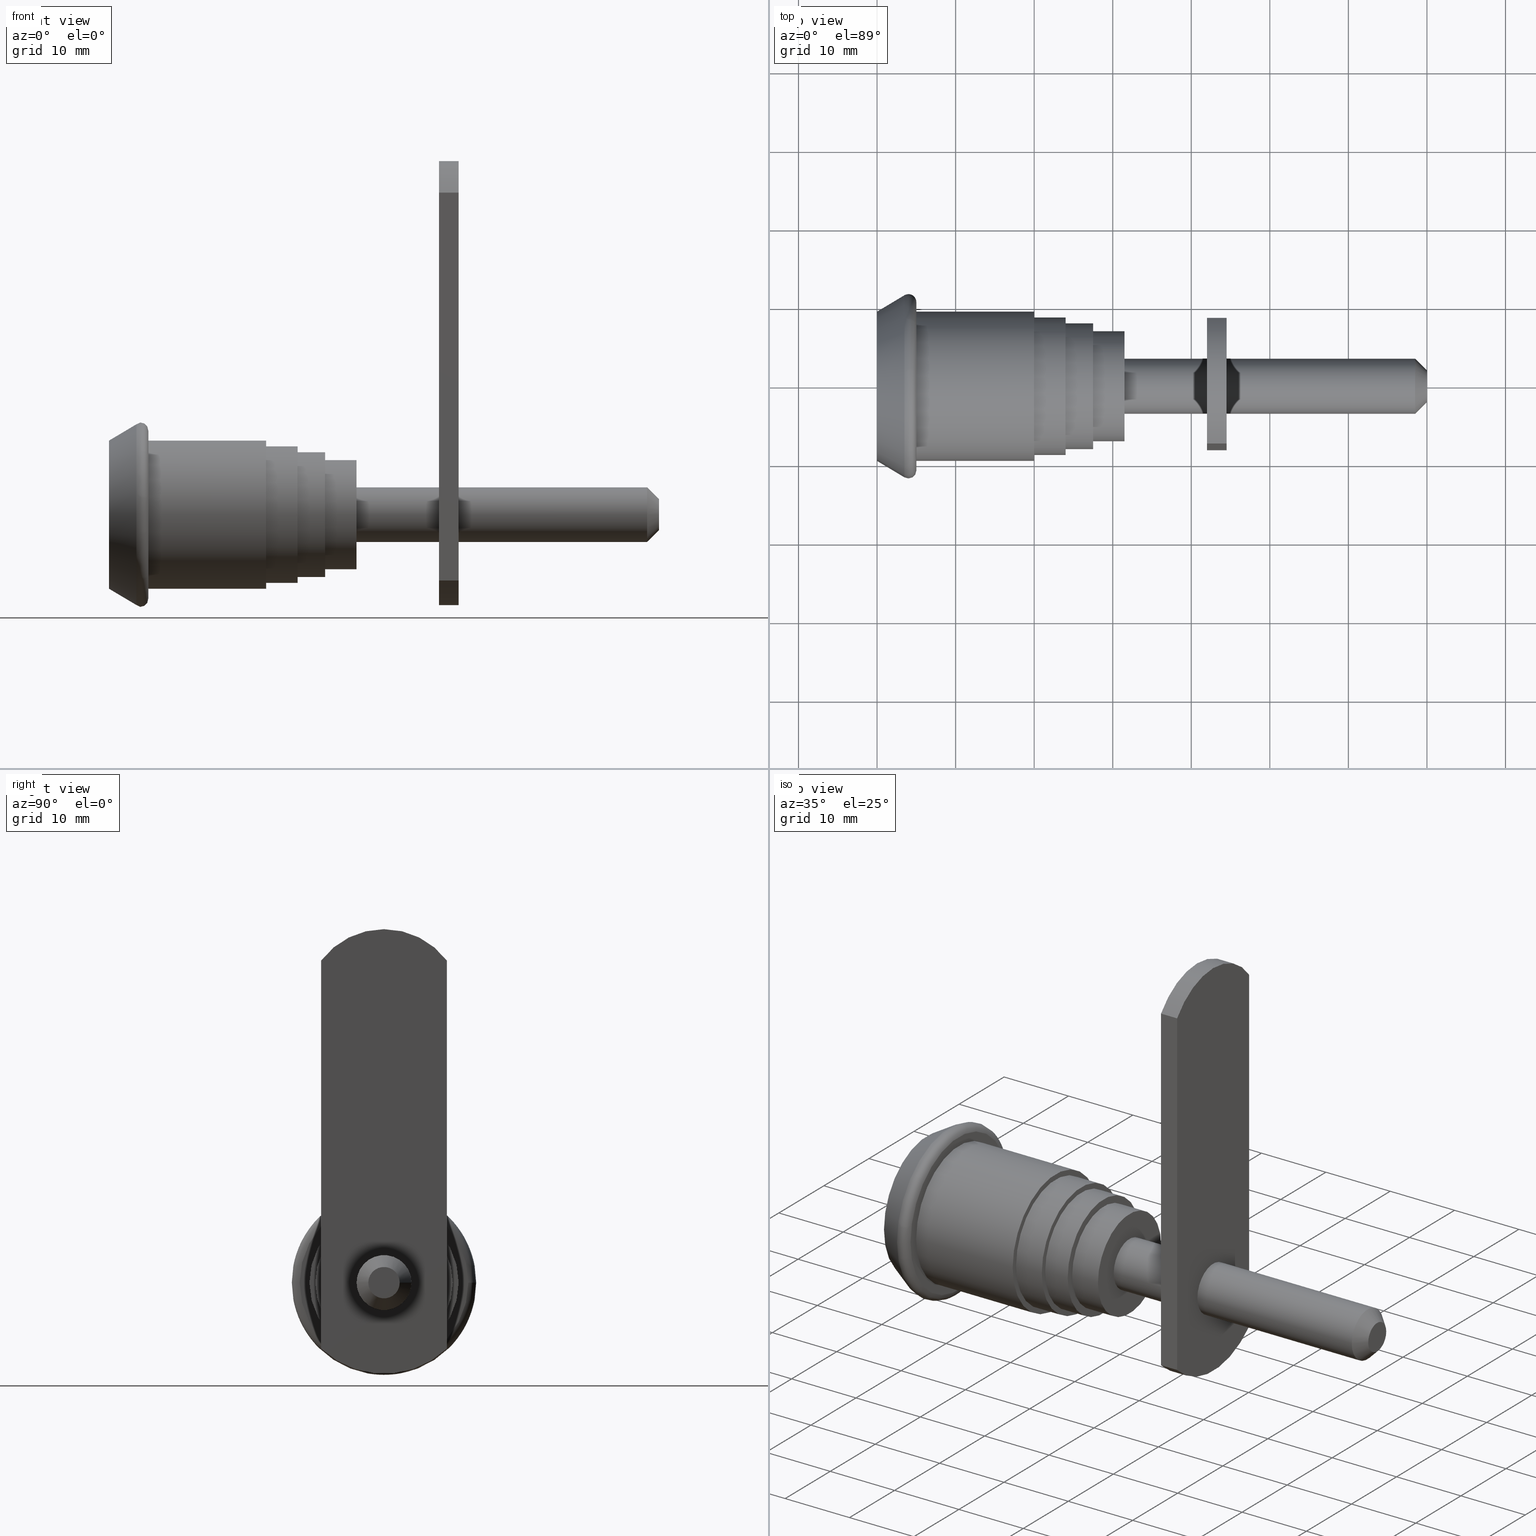
[diagram: canonical four-view strip — front | top / right | iso, engineering-drawing reading convention]
A machine part, canonical four-view strip (front | top / right | iso — engineering-drawing reading convention). The complete STEP part file that produces these views, byte-faithful:
ISO-10303-21;
HEADER;
/****************************************************************
 * Generated by software with PDE/Lib inside                    *
 * PDElib Version v4.4, created Mon 02/23/2004                  *
 * International Technegroup Inc. (www.iti-oh.com)              *
 ****************************************************************/
FILE_DESCRIPTION(('STEP AP203'),'2;1');
FILE_NAME('24.003.00.stp','2011-03-28T17:23:06',(''),(''),'2009.3.110','THINKDESIGN','');
FILE_SCHEMA(('CONFIG_CONTROL_DESIGN'));
ENDSEC;
DATA;
#2=CARTESIAN_POINT('',(69.999999999719876,-3.999999999983629,-3.999999999983629));
#3=DIRECTION('',(-1.0,0.0,0.0));
#4=DIRECTION('',(0.0,0.0,1.0));
#5=AXIS2_PLACEMENT_3D('',#2,#3,#4);
#6=PLANE('',#5);
#7=CARTESIAN_POINT('',(69.999999999719876,1.999999999991815,0.0));
#8=VERTEX_POINT('',#7);
#9=CARTESIAN_POINT('',(69.999999999719876,-1.999999999991815,0.0));
#10=VERTEX_POINT('',#9);
#11=CARTESIAN_POINT('',(69.999999999719876,0.0,0.0));
#12=DIRECTION('',(1.0,0.0,0.0));
#13=DIRECTION('',(0.0,1.0,0.0));
#14=AXIS2_PLACEMENT_3D('',#11,#12,#13);
#15=CIRCLE('',#14,1.999999999991815);
#16=EDGE_CURVE('',#8,#10,#15,.T.);
#17=ORIENTED_EDGE('',*,*,#16,.T.);
#18=CARTESIAN_POINT('',(69.999999999719876,0.0,0.0));
#19=DIRECTION('',(1.0,0.0,0.0));
#20=DIRECTION('',(0.0,1.0,0.0));
#21=AXIS2_PLACEMENT_3D('',#18,#19,#20);
#22=CIRCLE('',#21,1.999999999991815);
#23=EDGE_CURVE('',#10,#8,#22,.T.);
#24=ORIENTED_EDGE('',*,*,#23,.T.);
#25=EDGE_LOOP('',(#17,#24));
#26=FACE_OUTER_BOUND('',#25,.T.);
#27=ADVANCED_FACE('',(#26),#6,.F.);
#28=CARTESIAN_POINT('',(69.999999999719876,1.999999999991815,0.0));
#29=CARTESIAN_POINT('',(69.999999999719876,1.999999999991815,1.999999999991815));
#30=CARTESIAN_POINT('',(69.999999999719876,0.0,1.999999999991815));
#31=CARTESIAN_POINT('',(69.999999999719876,-1.999999999991815,1.999999999991815));
#32=CARTESIAN_POINT('',(69.999999999719876,-1.999999999991815,0.0));
#33=CARTESIAN_POINT('',(69.999999999719876,-1.999999999991815,-1.999999999991815));
#34=CARTESIAN_POINT('',(69.999999999719876,0.0,-1.999999999991815));
#35=CARTESIAN_POINT('',(69.999999999719876,1.999999999991815,-1.999999999991815));
#36=CARTESIAN_POINT('',(69.999999999719876,1.999999999991815,0.0));
#37=CARTESIAN_POINT('',(68.499999999726242,3.499999999985448,0.0));
#38=CARTESIAN_POINT('',(68.499999999726242,3.499999999985448,3.499999999985448));
#39=CARTESIAN_POINT('',(68.499999999726242,0.0,3.499999999985448));
#40=CARTESIAN_POINT('',(68.499999999726242,-3.499999999985448,3.499999999985448));
#41=CARTESIAN_POINT('',(68.499999999726242,-3.499999999985448,0.0));
#42=CARTESIAN_POINT('',(68.499999999726242,-3.499999999985448,-3.499999999985448));
#43=CARTESIAN_POINT('',(68.499999999726242,0.0,-3.499999999985448));
#44=CARTESIAN_POINT('',(68.499999999726242,3.499999999985448,-3.499999999985448));
#45=CARTESIAN_POINT('',(68.499999999726242,3.499999999985448,0.0));
#53=(BOUNDED_SURFACE()B_SPLINE_SURFACE(2,1,((#28,#37),(#29,#38),(#30,#39),(#31,#40),(#32,#41),(#33,#42),(#34,#43),(#35,#44),(#36,#45)),.UNSPECIFIED.,.T.,.F.,.U.)B_SPLINE_SURFACE_WITH_KNOTS((3,2,2,2,3),(2,2),(0.0,0.250000000000000,0.500000000000000,0.750000000000000,1.0),(0.0,2.121320343550639),.UNSPECIFIED.)GEOMETRIC_REPRESENTATION_ITEM()RATIONAL_B_SPLINE_SURFACE(((1.0,1.0),(0.707106781186548,0.707106781186548),(1.0,1.0),(0.707106781186548,0.707106781186548),(1.0,1.0),(0.707106781186548,0.707106781186548),(1.0,1.0),(0.707106781186548,0.707106781186548),(1.0,1.0)))REPRESENTATION_ITEM('')SURFACE());
#54=CARTESIAN_POINT('',(68.499999999726242,3.499999999985448,0.0));
#55=VERTEX_POINT('',#54);
#56=CARTESIAN_POINT('',(69.999999999719876,1.999999999991815,0.0));
#57=DIRECTION('',(-0.707106781186548,0.707106781186548,0.0));
#58=VECTOR('',#57,2.121320343550639);
#59=LINE('',#56,#58);
#60=EDGE_CURVE('',#8,#55,#59,.T.);
#61=ORIENTED_EDGE('',*,*,#60,.T.);
#62=CARTESIAN_POINT('',(68.499999999726242,-3.499999999985448,0.0));
#63=VERTEX_POINT('',#62);
#64=CARTESIAN_POINT('',(68.499999999726242,0.0,0.0));
#65=DIRECTION('',(1.0,0.0,0.0));
#66=DIRECTION('',(0.0,1.0,0.0));
#67=AXIS2_PLACEMENT_3D('',#64,#65,#66);
#68=CIRCLE('',#67,3.499999999985448);
#69=EDGE_CURVE('',#55,#63,#68,.T.);
#70=ORIENTED_EDGE('',*,*,#69,.T.);
#71=CARTESIAN_POINT('',(68.499999999726242,0.0,0.0));
#72=DIRECTION('',(1.0,0.0,0.0));
#73=DIRECTION('',(0.0,1.0,0.0));
#74=AXIS2_PLACEMENT_3D('',#71,#72,#73);
#75=CIRCLE('',#74,3.499999999985448);
#76=EDGE_CURVE('',#63,#55,#75,.T.);
#77=ORIENTED_EDGE('',*,*,#76,.T.);
#78=ORIENTED_EDGE('',*,*,#60,.F.);
#79=ORIENTED_EDGE('',*,*,#23,.F.);
#80=ORIENTED_EDGE('',*,*,#16,.F.);
#81=EDGE_LOOP('',(#61,#70,#77,#78,#79,#80));
#82=FACE_OUTER_BOUND('',#81,.T.);
#83=ADVANCED_FACE('',(#82),#53,.F.);
#84=CARTESIAN_POINT('',(68.499999999726242,0.0,0.0));
#85=DIRECTION('',(1.0,0.0,0.0));
#86=DIRECTION('',(0.0,1.0,0.0));
#87=AXIS2_PLACEMENT_3D('',#84,#85,#86);
#88=CYLINDRICAL_SURFACE('',#87,3.499999999985448);
#89=CARTESIAN_POINT('',(31.499999999874035,3.499999999985448,0.0));
#90=VERTEX_POINT('',#89);
#91=CARTESIAN_POINT('',(68.499999999726242,3.499999999985448,0.0));
#92=DIRECTION('',(-1.0,0.0,0.0));
#93=VECTOR('',#92,36.999999999852207);
#94=LINE('',#91,#93);
#95=EDGE_CURVE('',#55,#90,#94,.T.);
#96=ORIENTED_EDGE('',*,*,#95,.T.);
#97=CARTESIAN_POINT('',(31.499999999874035,-3.499999999985448,0.0));
#98=VERTEX_POINT('',#97);
#99=CARTESIAN_POINT('',(31.499999999874035,0.0,0.0));
#100=DIRECTION('',(1.0,0.0,0.0));
#101=DIRECTION('',(0.0,1.0,0.0));
#102=AXIS2_PLACEMENT_3D('',#99,#100,#101);
#103=CIRCLE('',#102,3.499999999985448);
#104=EDGE_CURVE('',#90,#98,#103,.T.);
#105=ORIENTED_EDGE('',*,*,#104,.T.);
#106=CARTESIAN_POINT('',(31.499999999874035,0.0,0.0));
#107=DIRECTION('',(1.0,0.0,0.0));
#108=DIRECTION('',(0.0,1.0,0.0));
#109=AXIS2_PLACEMENT_3D('',#106,#107,#108);
#110=CIRCLE('',#109,3.499999999985448);
#111=EDGE_CURVE('',#98,#90,#110,.T.);
#112=ORIENTED_EDGE('',*,*,#111,.T.);
#113=ORIENTED_EDGE('',*,*,#95,.F.);
#114=ORIENTED_EDGE('',*,*,#76,.F.);
#115=ORIENTED_EDGE('',*,*,#69,.F.);
#116=EDGE_LOOP('',(#96,#105,#112,#113,#114,#115));
#117=FACE_OUTER_BOUND('',#116,.T.);
#118=ADVANCED_FACE('',(#117),#88,.T.);
#119=CARTESIAN_POINT('',(31.499999999874035,6.999999999970896,-6.999999999970896));
#120=DIRECTION('',(1.0,0.0,0.0));
#121=DIRECTION('',(0.0,0.0,1.0));
#122=AXIS2_PLACEMENT_3D('',#119,#120,#121);
#123=PLANE('',#122);
#124=ORIENTED_EDGE('',*,*,#111,.F.);
#125=ORIENTED_EDGE('',*,*,#104,.F.);
#126=EDGE_LOOP('',(#124,#125));
#127=FACE_OUTER_BOUND('',#126,.T.);
#128=ADVANCED_FACE('',(#127),#123,.F.);
#129=CLOSED_SHELL('',(#27,#83,#118,#128));
#130=MANIFOLD_SOLID_BREP('',#129);
#131=CARTESIAN_POINT('',(31.499999999874035,-13.999999999943611,-13.999999999943611));
#132=DIRECTION('',(-1.0,0.0,0.0));
#133=DIRECTION('',(0.0,0.0,1.0));
#134=AXIS2_PLACEMENT_3D('',#131,#132,#133);
#135=PLANE('',#134);
#136=CARTESIAN_POINT('',(31.499999999874035,6.999999999971806,0.0));
#137=VERTEX_POINT('',#136);
#138=CARTESIAN_POINT('',(31.499999999874035,-6.999999999971806,0.0));
#139=VERTEX_POINT('',#138);
#140=CARTESIAN_POINT('',(31.499999999874035,0.0,0.0));
#141=DIRECTION('',(1.0,0.0,0.0));
#142=DIRECTION('',(0.0,1.0,0.0));
#143=AXIS2_PLACEMENT_3D('',#140,#141,#142);
#144=CIRCLE('',#143,6.999999999971806);
#145=EDGE_CURVE('',#137,#139,#144,.T.);
#146=ORIENTED_EDGE('',*,*,#145,.T.);
#147=CARTESIAN_POINT('',(31.499999999874035,0.0,0.0));
#148=DIRECTION('',(1.0,0.0,0.0));
#149=DIRECTION('',(0.0,1.0,0.0));
#150=AXIS2_PLACEMENT_3D('',#147,#148,#149);
#151=CIRCLE('',#150,6.999999999971806);
#152=EDGE_CURVE('',#139,#137,#151,.T.);
#153=ORIENTED_EDGE('',*,*,#152,.T.);
#154=EDGE_LOOP('',(#146,#153));
#155=FACE_OUTER_BOUND('',#154,.T.);
#156=ADVANCED_FACE('',(#155),#135,.F.);
#157=CARTESIAN_POINT('',(31.499999999874035,0.0,0.0));
#158=DIRECTION('',(1.0,0.0,0.0));
#159=DIRECTION('',(0.0,1.0,0.0));
#160=AXIS2_PLACEMENT_3D('',#157,#158,#159);
#161=CYLINDRICAL_SURFACE('',#160,6.999999999971806);
#162=CARTESIAN_POINT('',(27.499999999969077,6.999999999971806,0.0));
#163=VERTEX_POINT('',#162);
#164=CARTESIAN_POINT('',(31.499999999874035,6.999999999971806,0.0));
#165=DIRECTION('',(-1.0,0.0,0.0));
#166=VECTOR('',#165,3.999999999904958);
#167=LINE('',#164,#166);
#168=EDGE_CURVE('',#137,#163,#167,.T.);
#169=ORIENTED_EDGE('',*,*,#168,.T.);
#170=CARTESIAN_POINT('',(27.499999999969077,-6.999999999971806,0.0));
#171=VERTEX_POINT('',#170);
#172=CARTESIAN_POINT('',(27.499999999969077,0.0,0.0));
#173=DIRECTION('',(1.0,0.0,0.0));
#174=DIRECTION('',(0.0,1.0,0.0));
#175=AXIS2_PLACEMENT_3D('',#172,#173,#174);
#176=CIRCLE('',#175,6.999999999971806);
#177=EDGE_CURVE('',#163,#171,#176,.T.);
#178=ORIENTED_EDGE('',*,*,#177,.T.);
#179=CARTESIAN_POINT('',(27.499999999969077,0.0,0.0));
#180=DIRECTION('',(1.0,0.0,0.0));
#181=DIRECTION('',(0.0,1.0,0.0));
#182=AXIS2_PLACEMENT_3D('',#179,#180,#181);
#183=CIRCLE('',#182,6.999999999971806);
#184=EDGE_CURVE('',#171,#163,#183,.T.);
#185=ORIENTED_EDGE('',*,*,#184,.T.);
#186=ORIENTED_EDGE('',*,*,#168,.F.);
#187=ORIENTED_EDGE('',*,*,#152,.F.);
#188=ORIENTED_EDGE('',*,*,#145,.F.);
#189=EDGE_LOOP('',(#169,#178,#185,#186,#187,#188));
#190=FACE_OUTER_BOUND('',#189,.T.);
#191=ADVANCED_FACE('',(#190),#161,.T.);
#192=CARTESIAN_POINT('',(27.499999999969077,-15.999999999936335,-15.999999999936335));
#193=DIRECTION('',(-1.0,0.0,0.0));
#194=DIRECTION('',(0.0,0.0,1.0));
#195=AXIS2_PLACEMENT_3D('',#192,#193,#194);
#196=PLANE('',#195);
#197=CARTESIAN_POINT('',(27.499999999969077,7.999999999968168,0.0));
#198=VERTEX_POINT('',#197);
#199=CARTESIAN_POINT('',(27.499999999969077,-7.999999999968168,0.0));
#200=VERTEX_POINT('',#199);
#201=CARTESIAN_POINT('',(27.499999999969077,0.0,0.0));
#202=DIRECTION('',(1.0,0.0,0.0));
#203=DIRECTION('',(0.0,1.0,0.0));
#204=AXIS2_PLACEMENT_3D('',#201,#202,#203);
#205=CIRCLE('',#204,7.999999999968168);
#206=EDGE_CURVE('',#198,#200,#205,.T.);
#207=ORIENTED_EDGE('',*,*,#206,.T.);
#208=CARTESIAN_POINT('',(27.499999999969077,0.0,0.0));
#209=DIRECTION('',(1.0,0.0,0.0));
#210=DIRECTION('',(0.0,1.0,0.0));
#211=AXIS2_PLACEMENT_3D('',#208,#209,#210);
#212=CIRCLE('',#211,7.999999999968168);
#213=EDGE_CURVE('',#200,#198,#212,.T.);
#214=ORIENTED_EDGE('',*,*,#213,.T.);
#215=EDGE_LOOP('',(#207,#214));
#216=FACE_OUTER_BOUND('',#215,.T.);
#217=ORIENTED_EDGE('',*,*,#184,.F.);
#218=ORIENTED_EDGE('',*,*,#177,.F.);
#219=EDGE_LOOP('',(#217,#218));
#220=FACE_BOUND('',#219,.T.);
#221=ADVANCED_FACE('',(#216,#220),#196,.F.);
#222=CARTESIAN_POINT('',(27.499999999969077,0.0,0.0));
#223=DIRECTION('',(1.0,0.0,0.0));
#224=DIRECTION('',(0.0,1.0,0.0));
#225=AXIS2_PLACEMENT_3D('',#222,#223,#224);
#226=CYLINDRICAL_SURFACE('',#225,7.999999999968168);
#227=CARTESIAN_POINT('',(23.999999999983174,7.999999999968168,0.0));
#228=VERTEX_POINT('',#227);
#229=CARTESIAN_POINT('',(27.499999999969077,7.999999999968168,0.0));
#230=DIRECTION('',(-1.0,0.0,0.0));
#231=VECTOR('',#230,3.499999999985903);
#232=LINE('',#229,#231);
#233=EDGE_CURVE('',#198,#228,#232,.T.);
#234=ORIENTED_EDGE('',*,*,#233,.T.);
#235=CARTESIAN_POINT('',(23.999999999983174,-7.999999999968168,0.0));
#236=VERTEX_POINT('',#235);
#237=CARTESIAN_POINT('',(23.999999999983174,0.0,0.0));
#238=DIRECTION('',(1.0,0.0,0.0));
#239=DIRECTION('',(0.0,1.0,0.0));
#240=AXIS2_PLACEMENT_3D('',#237,#238,#239);
#241=CIRCLE('',#240,7.999999999968168);
#242=EDGE_CURVE('',#228,#236,#241,.T.);
#243=ORIENTED_EDGE('',*,*,#242,.T.);
#244=CARTESIAN_POINT('',(23.999999999983174,0.0,0.0));
#245=DIRECTION('',(1.0,0.0,0.0));
#246=DIRECTION('',(0.0,1.0,0.0));
#247=AXIS2_PLACEMENT_3D('',#244,#245,#246);
#248=CIRCLE('',#247,7.999999999968168);
#249=EDGE_CURVE('',#236,#228,#248,.T.);
#250=ORIENTED_EDGE('',*,*,#249,.T.);
#251=ORIENTED_EDGE('',*,*,#233,.F.);
#252=ORIENTED_EDGE('',*,*,#213,.F.);
#253=ORIENTED_EDGE('',*,*,#206,.F.);
#254=EDGE_LOOP('',(#234,#243,#250,#251,#252,#253));
#255=FACE_OUTER_BOUND('',#254,.T.);
#256=ADVANCED_FACE('',(#255),#226,.T.);
#257=CARTESIAN_POINT('',(23.999999999983174,-17.499999999929059,-17.499999999929059));
#258=DIRECTION('',(-1.0,0.0,0.0));
#259=DIRECTION('',(0.0,0.0,1.0));
#260=AXIS2_PLACEMENT_3D('',#257,#258,#259);
#261=PLANE('',#260);
#262=CARTESIAN_POINT('',(23.999999999983174,8.749999999964530,0.0));
#263=VERTEX_POINT('',#262);
#264=CARTESIAN_POINT('',(23.999999999983174,-8.749999999964530,0.0));
#265=VERTEX_POINT('',#264);
#266=CARTESIAN_POINT('',(23.999999999983174,0.0,0.0));
#267=DIRECTION('',(1.0,0.0,0.0));
#268=DIRECTION('',(0.0,1.0,0.0));
#269=AXIS2_PLACEMENT_3D('',#266,#267,#268);
#270=CIRCLE('',#269,8.749999999964530);
#271=EDGE_CURVE('',#263,#265,#270,.T.);
#272=ORIENTED_EDGE('',*,*,#271,.T.);
#273=CARTESIAN_POINT('',(23.999999999983174,0.0,0.0));
#274=DIRECTION('',(1.0,0.0,0.0));
#275=DIRECTION('',(0.0,1.0,0.0));
#276=AXIS2_PLACEMENT_3D('',#273,#274,#275);
#277=CIRCLE('',#276,8.749999999964530);
#278=EDGE_CURVE('',#265,#263,#277,.T.);
#279=ORIENTED_EDGE('',*,*,#278,.T.);
#280=EDGE_LOOP('',(#272,#279));
#281=FACE_OUTER_BOUND('',#280,.T.);
#282=ORIENTED_EDGE('',*,*,#249,.F.);
#283=ORIENTED_EDGE('',*,*,#242,.F.);
#284=EDGE_LOOP('',(#282,#283));
#285=FACE_BOUND('',#284,.T.);
#286=ADVANCED_FACE('',(#281,#285),#261,.F.);
#287=CARTESIAN_POINT('',(23.999999999983174,0.0,0.0));
#288=DIRECTION('',(1.0,0.0,0.0));
#289=DIRECTION('',(0.0,1.0,0.0));
#290=AXIS2_PLACEMENT_3D('',#287,#288,#289);
#291=CYLINDRICAL_SURFACE('',#290,8.749999999964530);
#292=CARTESIAN_POINT('',(19.999999999999091,8.749999999964530,0.0));
#293=VERTEX_POINT('',#292);
#294=CARTESIAN_POINT('',(23.999999999983174,8.749999999964530,0.0));
#295=DIRECTION('',(-1.0,0.0,0.0));
#296=VECTOR('',#295,3.999999999984084);
#297=LINE('',#294,#296);
#298=EDGE_CURVE('',#263,#293,#297,.T.);
#299=ORIENTED_EDGE('',*,*,#298,.T.);
#300=CARTESIAN_POINT('',(19.999999999999091,-8.749999999964530,0.0));
#301=VERTEX_POINT('',#300);
#302=CARTESIAN_POINT('',(19.999999999999091,0.0,0.0));
#303=DIRECTION('',(1.0,0.0,0.0));
#304=DIRECTION('',(0.0,1.0,0.0));
#305=AXIS2_PLACEMENT_3D('',#302,#303,#304);
#306=CIRCLE('',#305,8.749999999964530);
#307=EDGE_CURVE('',#293,#301,#306,.T.);
#308=ORIENTED_EDGE('',*,*,#307,.T.);
#309=CARTESIAN_POINT('',(19.999999999999091,0.0,0.0));
#310=DIRECTION('',(1.0,0.0,0.0));
#311=DIRECTION('',(0.0,1.0,0.0));
#312=AXIS2_PLACEMENT_3D('',#309,#310,#311);
#313=CIRCLE('',#312,8.749999999964530);
#314=EDGE_CURVE('',#301,#293,#313,.T.);
#315=ORIENTED_EDGE('',*,*,#314,.T.);
#316=ORIENTED_EDGE('',*,*,#298,.F.);
#317=ORIENTED_EDGE('',*,*,#278,.F.);
#318=ORIENTED_EDGE('',*,*,#271,.F.);
#319=EDGE_LOOP('',(#299,#308,#315,#316,#317,#318));
#320=FACE_OUTER_BOUND('',#319,.T.);
#321=ADVANCED_FACE('',(#320),#291,.T.);
#322=CARTESIAN_POINT('',(19.999999999999091,-18.999999999923602,-18.999999999923602));
#323=DIRECTION('',(-1.0,0.0,0.0));
#324=DIRECTION('',(0.0,0.0,1.0));
#325=AXIS2_PLACEMENT_3D('',#322,#323,#324);
#326=PLANE('',#325);
#327=CARTESIAN_POINT('',(19.999999999999091,9.499999999961801,0.0));
#328=VERTEX_POINT('',#327);
#329=CARTESIAN_POINT('',(19.999999999999091,-9.499999999961801,0.0));
#330=VERTEX_POINT('',#329);
#331=CARTESIAN_POINT('',(19.999999999999091,0.0,0.0));
#332=DIRECTION('',(1.0,0.0,0.0));
#333=DIRECTION('',(0.0,1.0,0.0));
#334=AXIS2_PLACEMENT_3D('',#331,#332,#333);
#335=CIRCLE('',#334,9.499999999961801);
#336=EDGE_CURVE('',#328,#330,#335,.T.);
#337=ORIENTED_EDGE('',*,*,#336,.T.);
#338=CARTESIAN_POINT('',(19.999999999999091,0.0,0.0));
#339=DIRECTION('',(1.0,0.0,0.0));
#340=DIRECTION('',(0.0,1.0,0.0));
#341=AXIS2_PLACEMENT_3D('',#338,#339,#340);
#342=CIRCLE('',#341,9.499999999961801);
#343=EDGE_CURVE('',#330,#328,#342,.T.);
#344=ORIENTED_EDGE('',*,*,#343,.T.);
#345=EDGE_LOOP('',(#337,#344));
#346=FACE_OUTER_BOUND('',#345,.T.);
#347=ORIENTED_EDGE('',*,*,#314,.F.);
#348=ORIENTED_EDGE('',*,*,#307,.F.);
#349=EDGE_LOOP('',(#347,#348));
#350=FACE_BOUND('',#349,.T.);
#351=ADVANCED_FACE('',(#346,#350),#326,.F.);
#352=CARTESIAN_POINT('',(19.999999999999091,0.0,0.0));
#353=DIRECTION('',(1.0,0.0,0.0));
#354=DIRECTION('',(0.0,1.0,0.0));
#355=AXIS2_PLACEMENT_3D('',#352,#353,#354);
#356=CYLINDRICAL_SURFACE('',#355,9.499999999961801);
#357=CARTESIAN_POINT('',(4.999999999979991,9.499999999961801,0.0));
#358=VERTEX_POINT('',#357);
#359=CARTESIAN_POINT('',(19.999999999999091,9.499999999961801,0.0));
#360=DIRECTION('',(-1.0,0.0,0.0));
#361=VECTOR('',#360,15.000000000019099);
#362=LINE('',#359,#361);
#363=EDGE_CURVE('',#328,#358,#362,.T.);
#364=ORIENTED_EDGE('',*,*,#363,.T.);
#365=CARTESIAN_POINT('',(4.999999999979991,-9.499999999961801,0.0));
#366=VERTEX_POINT('',#365);
#367=CARTESIAN_POINT('',(4.999999999979991,0.0,0.0));
#368=DIRECTION('',(1.0,0.0,0.0));
#369=DIRECTION('',(0.0,1.0,0.0));
#370=AXIS2_PLACEMENT_3D('',#367,#368,#369);
#371=CIRCLE('',#370,9.499999999961801);
#372=EDGE_CURVE('',#358,#366,#371,.T.);
#373=ORIENTED_EDGE('',*,*,#372,.T.);
#374=CARTESIAN_POINT('',(4.999999999979991,0.0,0.0));
#375=DIRECTION('',(1.0,0.0,0.0));
#376=DIRECTION('',(0.0,1.0,0.0));
#377=AXIS2_PLACEMENT_3D('',#374,#375,#376);
#378=CIRCLE('',#377,9.499999999961801);
#379=EDGE_CURVE('',#366,#358,#378,.T.);
#380=ORIENTED_EDGE('',*,*,#379,.T.);
#381=ORIENTED_EDGE('',*,*,#363,.F.);
#382=ORIENTED_EDGE('',*,*,#343,.F.);
#383=ORIENTED_EDGE('',*,*,#336,.F.);
#384=EDGE_LOOP('',(#364,#373,#380,#381,#382,#383));
#385=FACE_OUTER_BOUND('',#384,.T.);
#386=ADVANCED_FACE('',(#385),#356,.T.);
#387=CARTESIAN_POINT('',(4.999999999979991,-21.467619235212624,-21.467619235212624));
#388=DIRECTION('',(-1.0,0.0,0.0));
#389=DIRECTION('',(0.0,0.0,1.0));
#390=AXIS2_PLACEMENT_3D('',#387,#388,#389);
#391=PLANE('',#390);
#392=CARTESIAN_POINT('',(4.999999999979991,10.733809617606312,0.0));
#393=VERTEX_POINT('',#392);
#394=CARTESIAN_POINT('',(4.999999999979991,-10.733809617606312,0.0));
#395=VERTEX_POINT('',#394);
#396=CARTESIAN_POINT('',(4.999999999979991,0.0,0.0));
#397=DIRECTION('',(1.0,0.0,0.0));
#398=DIRECTION('',(0.0,1.0,0.0));
#399=AXIS2_PLACEMENT_3D('',#396,#397,#398);
#400=CIRCLE('',#399,10.733809617606312);
#401=EDGE_CURVE('',#393,#395,#400,.T.);
#402=ORIENTED_EDGE('',*,*,#401,.T.);
#403=CARTESIAN_POINT('',(4.999999999979991,0.0,0.0));
#404=DIRECTION('',(1.0,0.0,0.0));
#405=DIRECTION('',(0.0,1.0,0.0));
#406=AXIS2_PLACEMENT_3D('',#403,#404,#405);
#407=CIRCLE('',#406,10.733809617606312);
#408=EDGE_CURVE('',#395,#393,#407,.T.);
#409=ORIENTED_EDGE('',*,*,#408,.T.);
#410=EDGE_LOOP('',(#402,#409));
#411=FACE_OUTER_BOUND('',#410,.T.);
#412=ORIENTED_EDGE('',*,*,#379,.F.);
#413=ORIENTED_EDGE('',*,*,#372,.F.);
#414=EDGE_LOOP('',(#412,#413));
#415=FACE_BOUND('',#414,.T.);
#416=ADVANCED_FACE('',(#411,#415),#391,.F.);
#417=CARTESIAN_POINT('',(4.999999999979991,10.733809617606312,0.0));
#418=CARTESIAN_POINT('',(4.999999999979991,10.733809617606312,10.733809617606312));
#419=CARTESIAN_POINT('',(4.999999999979991,0.0,10.733809617606312));
#420=CARTESIAN_POINT('',(4.999999999979991,-10.733809617606312,10.733809617606312));
#421=CARTESIAN_POINT('',(4.999999999979991,-10.733809617606312,0.0));
#422=CARTESIAN_POINT('',(4.999999999979991,-10.733809617606312,-10.733809617606312));
#423=CARTESIAN_POINT('',(4.999999999979991,0.0,-10.733809617606312));
#424=CARTESIAN_POINT('',(4.999999999979991,10.733809617606312,-10.733809617606312));
#425=CARTESIAN_POINT('',(4.999999999979991,10.733809617606312,0.0));
#426=CARTESIAN_POINT('',(4.999999999979991,11.316780475255257,0.0));
#427=CARTESIAN_POINT('',(4.999999999979991,11.316780475255259,11.316780475255259));
#428=CARTESIAN_POINT('',(4.999999999979991,0.0,11.316780475255257));
#429=CARTESIAN_POINT('',(4.999999999979991,-11.316780475255259,11.316780475255259));
#430=CARTESIAN_POINT('',(4.999999999979991,-11.316780475255257,0.0));
#431=CARTESIAN_POINT('',(4.999999999979991,-11.316780475255259,-11.316780475255259));
#432=CARTESIAN_POINT('',(4.999999999979991,0.0,-11.316780475255257));
#433=CARTESIAN_POINT('',(4.999999999979991,11.316780475255259,-11.316780475255259));
#434=CARTESIAN_POINT('',(4.999999999979991,11.316780475255257,0.0));
#435=CARTESIAN_POINT('',(4.492698814014823,11.604009525990527,0.0));
#436=CARTESIAN_POINT('',(4.492698814014823,11.604009525990529,11.604009525990529));
#437=CARTESIAN_POINT('',(4.492698814014823,0.0,11.604009525990527));
#438=CARTESIAN_POINT('',(4.492698814014823,-11.604009525990529,11.604009525990529));
#439=CARTESIAN_POINT('',(4.492698814014823,-11.604009525990527,0.0));
#440=CARTESIAN_POINT('',(4.492698814014823,-11.604009525990529,-11.604009525990529));
#441=CARTESIAN_POINT('',(4.492698814014823,0.0,-11.604009525990527));
#442=CARTESIAN_POINT('',(4.492698814014823,11.604009525990529,-11.604009525990529));
#443=CARTESIAN_POINT('',(4.492698814014823,11.604009525990527,0.0));
#444=CARTESIAN_POINT('',(3.985397628049653,11.891238576725794,0.0));
#445=CARTESIAN_POINT('',(3.985397628049653,11.891238576725794,11.891238576725794));
#446=CARTESIAN_POINT('',(3.985397628049653,0.0,11.891238576725794));
#447=CARTESIAN_POINT('',(3.985397628049653,-11.891238576725794,11.891238576725794));
#448=CARTESIAN_POINT('',(3.985397628049653,-11.891238576725794,0.0));
#449=CARTESIAN_POINT('',(3.985397628049653,-11.891238576725794,-11.891238576725794));
#450=CARTESIAN_POINT('',(3.985397628049653,0.0,-11.891238576725794));
#451=CARTESIAN_POINT('',(3.985397628049653,11.891238576725794,-11.891238576725794));
#452=CARTESIAN_POINT('',(3.985397628049653,11.891238576725794,0.0));
#453=CARTESIAN_POINT('',(3.485504241717141,11.591302544930739,0.0));
#454=CARTESIAN_POINT('',(3.485504241717141,11.591302544930739,11.591302544930739));
#455=CARTESIAN_POINT('',(3.485504241717141,0.0,11.591302544930739));
#456=CARTESIAN_POINT('',(3.485504241717141,-11.591302544930739,11.591302544930739));
#457=CARTESIAN_POINT('',(3.485504241717141,-11.591302544930739,0.0));
#458=CARTESIAN_POINT('',(3.485504241717141,-11.591302544930739,-11.591302544930739));
#459=CARTESIAN_POINT('',(3.485504241717141,0.0,-11.591302544930739));
#460=CARTESIAN_POINT('',(3.485504241717141,11.591302544930739,-11.591302544930739));
#461=CARTESIAN_POINT('',(3.485504241717141,11.591302544930739,0.0));
#469=(BOUNDED_SURFACE()B_SPLINE_SURFACE(2,2,((#417,#426,#435,#444,#453),(#418,#427,#436,#445,#454),(#419,#428,#437,#446,#455),(#420,#429,#438,#447,#456),(#421,#430,#439,#448,#457),(#422,#431,#440,#449,#458),(#423,#432,#441,#450,#459),(#424,#433,#442,#451,#460),(#425,#434,#443,#452,#461)),.UNSPECIFIED.,.T.,.F.,.U.)B_SPLINE_SURFACE_WITH_KNOTS((3,2,2,2,3),(3,2,3),(0.0,0.250000000000000,0.500000000000000,0.750000000000000,1.0),(0.0,0.500000000000000,1.0),.UNSPECIFIED.)GEOMETRIC_REPRESENTATION_ITEM()RATIONAL_B_SPLINE_SURFACE(((1.0,0.863915162208201,1.0,0.863915162208201,1.0),(0.707106781186548,0.610880269567295,0.707106781186548,0.610880269567295,0.707106781186548),(1.0,0.863915162208201,1.0,0.863915162208201,1.0),(0.707106781186548,0.610880269567295,0.707106781186548,0.610880269567295,0.707106781186548),(1.0,0.863915162208201,1.0,0.863915162208201,1.0),(0.707106781186548,0.610880269567295,0.707106781186548,0.610880269567295,0.707106781186548),(1.0,0.863915162208201,1.0,0.863915162208201,1.0),(0.707106781186548,0.610880269567295,0.707106781186548,0.610880269567295,0.707106781186548),(1.0,0.863915162208201,1.0,0.863915162208201,1.0)))REPRESENTATION_ITEM('')SURFACE());
#470=CARTESIAN_POINT('',(3.485504241703438,11.591302544953578,0.0));
#471=VERTEX_POINT('',#470);
#472=CARTESIAN_POINT('',(3.999999998104158,10.733809617606312,0.0));
#473=DIRECTION('',(0.0,0.0,1.0));
#474=DIRECTION('',(1.0,0.0,0.0));
#475=AXIS2_PLACEMENT_3D('',#472,#473,#474);
#476=CIRCLE('',#475,1.000000001875833);
#477=EDGE_CURVE('',#393,#471,#476,.T.);
#478=ORIENTED_EDGE('',*,*,#477,.T.);
#479=CARTESIAN_POINT('',(3.485504241703438,-11.591302544953578,0.0));
#480=VERTEX_POINT('',#479);
#481=CARTESIAN_POINT('',(3.485504241703438,0.0,0.0));
#482=DIRECTION('',(1.0,0.0,0.0));
#483=DIRECTION('',(0.0,1.0,0.0));
#484=AXIS2_PLACEMENT_3D('',#481,#482,#483);
#485=CIRCLE('',#484,11.591302544953578);
#486=EDGE_CURVE('',#471,#480,#485,.T.);
#487=ORIENTED_EDGE('',*,*,#486,.T.);
#488=CARTESIAN_POINT('',(3.485504241703438,0.0,0.0));
#489=DIRECTION('',(1.0,0.0,0.0));
#490=DIRECTION('',(0.0,1.0,0.0));
#491=AXIS2_PLACEMENT_3D('',#488,#489,#490);
#492=CIRCLE('',#491,11.591302544953578);
#493=EDGE_CURVE('',#480,#471,#492,.T.);
#494=ORIENTED_EDGE('',*,*,#493,.T.);
#495=ORIENTED_EDGE('',*,*,#477,.F.);
#496=ORIENTED_EDGE('',*,*,#408,.F.);
#497=ORIENTED_EDGE('',*,*,#401,.F.);
#498=EDGE_LOOP('',(#478,#487,#494,#495,#496,#497));
#499=FACE_OUTER_BOUND('',#498,.T.);
#500=ADVANCED_FACE('',(#499),#469,.F.);
#501=CARTESIAN_POINT('',(3.485504241703438,11.591302544953578,0.0));
#502=CARTESIAN_POINT('',(3.485504241703438,11.591302544953578,11.591302544953578));
#503=CARTESIAN_POINT('',(3.485504241703438,0.0,11.591302544953578));
#504=CARTESIAN_POINT('',(3.485504241703438,-11.591302544953578,11.591302544953578));
#505=CARTESIAN_POINT('',(3.485504241703438,-11.591302544953578,0.0));
#506=CARTESIAN_POINT('',(3.485504241703438,-11.591302544953578,-11.591302544953578));
#507=CARTESIAN_POINT('',(3.485504241703438,0.0,-11.591302544953578));
#508=CARTESIAN_POINT('',(3.485504241703438,11.591302544953578,-11.591302544953578));
#509=CARTESIAN_POINT('',(3.485504241703438,11.591302544953578,0.0));
#510=CARTESIAN_POINT('',(0.0,9.499999999961801,0.0));
#511=CARTESIAN_POINT('',(0.0,9.499999999961801,9.499999999961801));
#512=CARTESIAN_POINT('',(0.0,0.0,9.499999999961801));
#513=CARTESIAN_POINT('',(0.0,-9.499999999961801,9.499999999961801));
#514=CARTESIAN_POINT('',(0.0,-9.499999999961801,0.0));
#515=CARTESIAN_POINT('',(0.0,-9.499999999961801,-9.499999999961801));
#516=CARTESIAN_POINT('',(0.0,0.0,-9.499999999961801));
#517=CARTESIAN_POINT('',(0.0,9.499999999961801,-9.499999999961801));
#518=CARTESIAN_POINT('',(0.0,9.499999999961801,0.0));
#526=(BOUNDED_SURFACE()B_SPLINE_SURFACE(2,1,((#501,#510),(#502,#511),(#503,#512),(#504,#513),(#505,#514),(#506,#515),(#507,#516),(#508,#517),(#509,#518)),.UNSPECIFIED.,.T.,.F.,.U.)B_SPLINE_SURFACE_WITH_KNOTS((3,2,2,2,3),(2,2),(0.0,0.250000000000000,0.500000000000000,0.750000000000000,1.0),(0.0,4.064761512514817),.UNSPECIFIED.)GEOMETRIC_REPRESENTATION_ITEM()RATIONAL_B_SPLINE_SURFACE(((1.0,1.0),(0.707106781186548,0.707106781186548),(1.0,1.0),(0.707106781186548,0.707106781186548),(1.0,1.0),(0.707106781186548,0.707106781186548),(1.0,1.0),(0.707106781186548,0.707106781186548),(1.0,1.0)))REPRESENTATION_ITEM('')SURFACE());
#527=CARTESIAN_POINT('',(0.0,9.499999999961801,0.0));
#528=VERTEX_POINT('',#527);
#529=CARTESIAN_POINT('',(3.485504241703438,11.591302544953578,0.0));
#530=DIRECTION('',(-0.857492925715831,-0.514495755422048,0.0));
#531=VECTOR('',#530,4.064761512514817);
#532=LINE('',#529,#531);
#533=EDGE_CURVE('',#471,#528,#532,.T.);
#534=ORIENTED_EDGE('',*,*,#533,.T.);
#535=CARTESIAN_POINT('',(0.0,-9.499999999961801,0.0));
#536=VERTEX_POINT('',#535);
#537=CARTESIAN_POINT('',(0.0,0.0,0.0));
#538=DIRECTION('',(1.0,0.0,0.0));
#539=DIRECTION('',(0.0,1.0,0.0));
#540=AXIS2_PLACEMENT_3D('',#537,#538,#539);
#541=CIRCLE('',#540,9.499999999961801);
#542=EDGE_CURVE('',#528,#536,#541,.T.);
#543=ORIENTED_EDGE('',*,*,#542,.T.);
#544=CARTESIAN_POINT('',(0.0,0.0,0.0));
#545=DIRECTION('',(1.0,0.0,0.0));
#546=DIRECTION('',(0.0,1.0,0.0));
#547=AXIS2_PLACEMENT_3D('',#544,#545,#546);
#548=CIRCLE('',#547,9.499999999961801);
#549=EDGE_CURVE('',#536,#528,#548,.T.);
#550=ORIENTED_EDGE('',*,*,#549,.T.);
#551=ORIENTED_EDGE('',*,*,#533,.F.);
#552=ORIENTED_EDGE('',*,*,#493,.F.);
#553=ORIENTED_EDGE('',*,*,#486,.F.);
#554=EDGE_LOOP('',(#534,#543,#550,#551,#552,#553));
#555=FACE_OUTER_BOUND('',#554,.T.);
#556=ADVANCED_FACE('',(#555),#526,.F.);
#557=CARTESIAN_POINT('',(0.0,18.999999999923602,-18.999999999923602));
#558=DIRECTION('',(1.0,0.0,0.0));
#559=DIRECTION('',(0.0,0.0,1.0));
#560=AXIS2_PLACEMENT_3D('',#557,#558,#559);
#561=PLANE('',#560);
#562=ORIENTED_EDGE('',*,*,#549,.F.);
#563=ORIENTED_EDGE('',*,*,#542,.F.);
#564=EDGE_LOOP('',(#562,#563));
#565=FACE_OUTER_BOUND('',#564,.T.);
#566=CARTESIAN_POINT('',(0.0,0.0,-7.999999999968002));
#567=VERTEX_POINT('',#566);
#568=CARTESIAN_POINT('',(0.0,0.0,7.999999999968002));
#569=VERTEX_POINT('',#568);
#570=CARTESIAN_POINT('',(0.0,0.0,0.0));
#571=DIRECTION('',(-1.0,0.0,0.0));
#572=DIRECTION('',(0.0,0.0,1.0));
#573=AXIS2_PLACEMENT_3D('',#570,#571,#572);
#574=CIRCLE('',#573,7.999999999968002);
#575=EDGE_CURVE('',#567,#569,#574,.T.);
#576=ORIENTED_EDGE('',*,*,#575,.F.);
#577=CARTESIAN_POINT('',(0.0,0.0,0.0));
#578=DIRECTION('',(-1.0,0.0,0.0));
#579=DIRECTION('',(0.0,0.0,1.0));
#580=AXIS2_PLACEMENT_3D('',#577,#578,#579);
#581=CIRCLE('',#580,7.999999999968002);
#582=EDGE_CURVE('',#569,#567,#581,.T.);
#583=ORIENTED_EDGE('',*,*,#582,.F.);
#584=EDGE_LOOP('',(#576,#583));
#585=FACE_BOUND('',#584,.T.);
#586=ADVANCED_FACE('',(#565,#585),#561,.F.);
#587=CARTESIAN_POINT('',(0.0,0.0,0.0));
#588=DIRECTION('',(-1.0,0.0,0.0));
#589=DIRECTION('',(0.0,0.0,1.0));
#590=AXIS2_PLACEMENT_3D('',#587,#588,#589);
#591=CYLINDRICAL_SURFACE('',#590,7.999999999968002);
#592=CARTESIAN_POINT('',(18.0,0.0,-7.999999999968002));
#593=VERTEX_POINT('',#592);
#594=CARTESIAN_POINT('',(18.0,0.0,7.999999999968002));
#595=VERTEX_POINT('',#594);
#596=CARTESIAN_POINT('',(18.0,0.0,0.0));
#597=DIRECTION('',(-1.0,0.0,0.0));
#598=DIRECTION('',(0.0,0.0,1.0));
#599=AXIS2_PLACEMENT_3D('',#596,#597,#598);
#600=CIRCLE('',#599,7.999999999968002);
#601=EDGE_CURVE('',#593,#595,#600,.T.);
#602=ORIENTED_EDGE('',*,*,#601,.F.);
#603=CARTESIAN_POINT('',(18.0,0.0,0.0));
#604=DIRECTION('',(-1.0,0.0,0.0));
#605=DIRECTION('',(0.0,0.0,1.0));
#606=AXIS2_PLACEMENT_3D('',#603,#604,#605);
#607=CIRCLE('',#606,7.999999999968002);
#608=EDGE_CURVE('',#595,#593,#607,.T.);
#609=ORIENTED_EDGE('',*,*,#608,.F.);
#610=CARTESIAN_POINT('',(0.0,0.0,7.999999999968002));
#611=DIRECTION('',(1.0,0.0,0.0));
#612=VECTOR('',#611,18.0);
#613=LINE('',#610,#612);
#614=EDGE_CURVE('',#569,#595,#613,.T.);
#615=ORIENTED_EDGE('',*,*,#614,.F.);
#616=ORIENTED_EDGE('',*,*,#582,.T.);
#617=ORIENTED_EDGE('',*,*,#575,.T.);
#618=ORIENTED_EDGE('',*,*,#614,.T.);
#619=EDGE_LOOP('',(#602,#609,#615,#616,#617,#618));
#620=FACE_OUTER_BOUND('',#619,.T.);
#621=ADVANCED_FACE('',(#620),#591,.F.);
#622=CARTESIAN_POINT('',(18.0,-9.605478730991308,9.605478730971404));
#623=DIRECTION('',(-1.0,0.0,0.0));
#624=DIRECTION('',(0.0,1.0,0.0));
#625=AXIS2_PLACEMENT_3D('',#622,#623,#624);
#626=PLANE('',#625);
#627=ORIENTED_EDGE('',*,*,#608,.T.);
#628=ORIENTED_EDGE('',*,*,#601,.T.);
#629=EDGE_LOOP('',(#627,#628));
#630=FACE_OUTER_BOUND('',#629,.T.);
#631=ADVANCED_FACE('',(#630),#626,.T.);
#632=CLOSED_SHELL('',(#156,#191,#221,#256,#286,#321,#351,#386,#416,#500,#556,#586,#621,#631));
#633=MANIFOLD_SOLID_BREP('',#632);
#634=CARTESIAN_POINT('',(44.500000000000000,7.999999999968168,40.999999999835836));
#635=DIRECTION('',(0.0,1.0,0.0));
#636=DIRECTION('',(0.0,0.0,-1.0));
#637=AXIS2_PLACEMENT_3D('',#634,#635,#636);
#638=PLANE('',#637);
#639=CARTESIAN_POINT('',(44.500000000000000,7.999999999968168,40.999999999835836));
#640=VERTEX_POINT('',#639);
#641=CARTESIAN_POINT('',(44.500000000000000,7.999999999968168,-8.387985141234784));
#642=VERTEX_POINT('',#641);
#643=CARTESIAN_POINT('',(44.500000000000000,7.999999999968168,40.999999999835836));
#644=DIRECTION('',(0.0,0.0,-1.0));
#645=VECTOR('',#644,49.387985141070615);
#646=LINE('',#643,#645);
#647=EDGE_CURVE('',#640,#642,#646,.T.);
#648=ORIENTED_EDGE('',*,*,#647,.T.);
#649=CARTESIAN_POINT('',(42.0,7.999999999968168,-8.387985141234784));
#650=VERTEX_POINT('',#649);
#651=CARTESIAN_POINT('',(44.500000000000000,7.999999999968168,-8.387985141234784));
#652=DIRECTION('',(-1.0,0.0,0.0));
#653=VECTOR('',#652,2.500000000000000);
#654=LINE('',#651,#653);
#655=EDGE_CURVE('',#642,#650,#654,.T.);
#656=ORIENTED_EDGE('',*,*,#655,.T.);
#657=CARTESIAN_POINT('',(42.0,7.999999999968168,40.999999999835836));
#658=VERTEX_POINT('',#657);
#659=CARTESIAN_POINT('',(42.0,7.999999999968168,40.999999999835836));
#660=DIRECTION('',(0.0,0.0,-1.0));
#661=VECTOR('',#660,49.387985141070615);
#662=LINE('',#659,#661);
#663=EDGE_CURVE('',#658,#650,#662,.T.);
#664=ORIENTED_EDGE('',*,*,#663,.F.);
#665=CARTESIAN_POINT('',(44.500000000000000,7.999999999968168,40.999999999835836));
#666=DIRECTION('',(-1.0,0.0,0.0));
#667=VECTOR('',#666,2.500000000000000);
#668=LINE('',#665,#667);
#669=EDGE_CURVE('',#640,#658,#668,.T.);
#670=ORIENTED_EDGE('',*,*,#669,.F.);
#671=EDGE_LOOP('',(#648,#656,#664,#670));
#672=FACE_OUTER_BOUND('',#671,.T.);
#673=ADVANCED_FACE('',(#672),#638,.T.);
#674=CARTESIAN_POINT('',(44.500000000000000,0.0,0.0));
#675=DIRECTION('',(-1.0,0.0,0.0));
#676=DIRECTION('',(0.0,0.690172650376360,-0.723644742033321));
#677=AXIS2_PLACEMENT_3D('',#674,#675,#676);
#678=CYLINDRICAL_SURFACE('',#677,11.591302546697079);
#679=CARTESIAN_POINT('',(44.500000000000000,-7.999999999968168,-8.387985141234822));
#680=VERTEX_POINT('',#679);
#681=CARTESIAN_POINT('',(44.500000000000000,0.0,0.0));
#682=DIRECTION('',(-1.0,0.0,0.0));
#683=DIRECTION('',(0.0,-0.690172650376360,0.723644742033321));
#684=AXIS2_PLACEMENT_3D('',#681,#682,#683);
#685=CIRCLE('',#684,11.591302546697079);
#686=EDGE_CURVE('',#642,#680,#685,.T.);
#687=ORIENTED_EDGE('',*,*,#686,.T.);
#688=CARTESIAN_POINT('',(42.0,-7.999999999968168,-8.387985141234822));
#689=VERTEX_POINT('',#688);
#690=CARTESIAN_POINT('',(44.500000000000000,-7.999999999968168,-8.387985141234822));
#691=DIRECTION('',(-1.0,0.0,0.0));
#692=VECTOR('',#691,2.500000000000000);
#693=LINE('',#690,#692);
#694=EDGE_CURVE('',#680,#689,#693,.T.);
#695=ORIENTED_EDGE('',*,*,#694,.T.);
#696=CARTESIAN_POINT('',(42.0,0.0,0.0));
#697=DIRECTION('',(-1.0,0.0,0.0));
#698=DIRECTION('',(0.0,-0.690172650376360,0.723644742033321));
#699=AXIS2_PLACEMENT_3D('',#696,#697,#698);
#700=CIRCLE('',#699,11.591302546697079);
#701=EDGE_CURVE('',#650,#689,#700,.T.);
#702=ORIENTED_EDGE('',*,*,#701,.F.);
#703=ORIENTED_EDGE('',*,*,#655,.F.);
#704=EDGE_LOOP('',(#687,#695,#702,#703));
#705=FACE_OUTER_BOUND('',#704,.T.);
#706=ADVANCED_FACE('',(#705),#678,.T.);
#707=CARTESIAN_POINT('',(44.500000000000000,-7.999999999968168,-8.387985141234822));
#708=DIRECTION('',(0.0,-1.0,0.0));
#709=DIRECTION('',(0.0,0.0,1.0));
#710=AXIS2_PLACEMENT_3D('',#707,#708,#709);
#711=PLANE('',#710);
#712=CARTESIAN_POINT('',(44.500000000000000,-7.999999999968168,40.999999999835836));
#713=VERTEX_POINT('',#712);
#714=CARTESIAN_POINT('',(44.500000000000000,-7.999999999968168,-8.387985141234822));
#715=DIRECTION('',(0.0,0.0,1.0));
#716=VECTOR('',#715,49.387985141070658);
#717=LINE('',#714,#716);
#718=EDGE_CURVE('',#680,#713,#717,.T.);
#719=ORIENTED_EDGE('',*,*,#718,.T.);
#720=CARTESIAN_POINT('',(42.0,-7.999999999968168,40.999999999835836));
#721=VERTEX_POINT('',#720);
#722=CARTESIAN_POINT('',(44.500000000000000,-7.999999999968168,40.999999999835836));
#723=DIRECTION('',(-1.0,0.0,0.0));
#724=VECTOR('',#723,2.500000000000000);
#725=LINE('',#722,#724);
#726=EDGE_CURVE('',#713,#721,#725,.T.);
#727=ORIENTED_EDGE('',*,*,#726,.T.);
#728=CARTESIAN_POINT('',(42.0,-7.999999999968168,-8.387985141234822));
#729=DIRECTION('',(0.0,0.0,1.0));
#730=VECTOR('',#729,49.387985141070658);
#731=LINE('',#728,#730);
#732=EDGE_CURVE('',#689,#721,#731,.T.);
#733=ORIENTED_EDGE('',*,*,#732,.F.);
#734=ORIENTED_EDGE('',*,*,#694,.F.);
#735=EDGE_LOOP('',(#719,#727,#733,#734));
#736=FACE_OUTER_BOUND('',#735,.T.);
#737=ADVANCED_FACE('',(#736),#711,.T.);
#738=CARTESIAN_POINT('',(44.500000000000000,0.0,34.999999999859938));
#739=DIRECTION('',(-1.0,0.0,0.0));
#740=DIRECTION('',(0.0,-0.800000000000011,0.599999999999986));
#741=AXIS2_PLACEMENT_3D('',#738,#739,#740);
#742=CYLINDRICAL_SURFACE('',#741,9.999999999960073);
#743=CARTESIAN_POINT('',(44.500000000000000,0.0,34.999999999859938));
#744=DIRECTION('',(-1.0,0.0,0.0));
#745=DIRECTION('',(0.0,0.800000000000011,-0.599999999999985));
#746=AXIS2_PLACEMENT_3D('',#743,#744,#745);
#747=CIRCLE('',#746,9.999999999960073);
#748=EDGE_CURVE('',#713,#640,#747,.T.);
#749=ORIENTED_EDGE('',*,*,#748,.T.);
#750=ORIENTED_EDGE('',*,*,#669,.T.);
#751=CARTESIAN_POINT('',(42.0,0.0,34.999999999859938));
#752=DIRECTION('',(-1.0,0.0,0.0));
#753=DIRECTION('',(0.0,0.800000000000011,-0.599999999999985));
#754=AXIS2_PLACEMENT_3D('',#751,#752,#753);
#755=CIRCLE('',#754,9.999999999960073);
#756=EDGE_CURVE('',#721,#658,#755,.T.);
#757=ORIENTED_EDGE('',*,*,#756,.F.);
#758=ORIENTED_EDGE('',*,*,#726,.F.);
#759=EDGE_LOOP('',(#749,#750,#757,#758));
#760=FACE_OUTER_BOUND('',#759,.T.);
#761=ADVANCED_FACE('',(#760),#742,.T.);
#762=CARTESIAN_POINT('',(44.500000000000000,-9.600054714007456,-17.250437525799278));
#763=DIRECTION('',(-1.0,0.0,0.0));
#764=DIRECTION('',(0.0,0.0,1.0));
#765=AXIS2_PLACEMENT_3D('',#762,#763,#764);
#766=PLANE('',#765);
#767=ORIENTED_EDGE('',*,*,#748,.F.);
#768=ORIENTED_EDGE('',*,*,#718,.F.);
#769=ORIENTED_EDGE('',*,*,#686,.F.);
#770=ORIENTED_EDGE('',*,*,#647,.F.);
#771=EDGE_LOOP('',(#767,#768,#769,#770));
#772=FACE_OUTER_BOUND('',#771,.T.);
#773=ADVANCED_FACE('',(#772),#766,.F.);
#774=CARTESIAN_POINT('',(42.0,-9.600054714007456,-17.250437525799278));
#775=DIRECTION('',(-1.0,0.0,0.0));
#776=DIRECTION('',(0.0,0.0,1.0));
#777=AXIS2_PLACEMENT_3D('',#774,#775,#776);
#778=PLANE('',#777);
#779=ORIENTED_EDGE('',*,*,#663,.T.);
#780=ORIENTED_EDGE('',*,*,#701,.T.);
#781=ORIENTED_EDGE('',*,*,#732,.T.);
#782=ORIENTED_EDGE('',*,*,#756,.T.);
#783=EDGE_LOOP('',(#779,#780,#781,#782));
#784=FACE_OUTER_BOUND('',#783,.T.);
#785=ADVANCED_FACE('',(#784),#778,.T.);
#786=CLOSED_SHELL('',(#673,#706,#737,#761,#773,#785));
#787=MANIFOLD_SOLID_BREP('',#786);
#788=CARTESIAN_POINT('',(18.0,0.0,0.0));
#789=DIRECTION('',(-1.0,0.0,0.0));
#790=DIRECTION('',(0.0,1.0,0.0));
#791=AXIS2_PLACEMENT_3D('',#788,#789,#790);
#792=CYLINDRICAL_SURFACE('',#791,7.999999999999999);
#793=CARTESIAN_POINT('',(18.0,8.0,0.0));
#794=VERTEX_POINT('',#793);
#795=CARTESIAN_POINT('',(18.0,-7.999999999999999,0.0));
#796=VERTEX_POINT('',#795);
#797=CARTESIAN_POINT('',(18.0,0.0,0.0));
#798=DIRECTION('',(-1.0,0.0,0.0));
#799=DIRECTION('',(0.0,1.0,0.0));
#800=AXIS2_PLACEMENT_3D('',#797,#798,#799);
#801=CIRCLE('',#800,7.999999999999999);
#802=EDGE_CURVE('',#794,#796,#801,.T.);
#803=ORIENTED_EDGE('',*,*,#802,.T.);
#804=CARTESIAN_POINT('',(18.0,0.0,0.0));
#805=DIRECTION('',(-1.0,0.0,0.0));
#806=DIRECTION('',(0.0,1.0,0.0));
#807=AXIS2_PLACEMENT_3D('',#804,#805,#806);
#808=CIRCLE('',#807,7.999999999999999);
#809=EDGE_CURVE('',#796,#794,#808,.T.);
#810=ORIENTED_EDGE('',*,*,#809,.T.);
#811=CARTESIAN_POINT('',(0.500000000000000,8.0,0.0));
#812=VERTEX_POINT('',#811);
#813=CARTESIAN_POINT('',(18.0,8.0,0.0));
#814=DIRECTION('',(-1.0,0.0,0.0));
#815=VECTOR('',#814,17.500000000000000);
#816=LINE('',#813,#815);
#817=EDGE_CURVE('',#794,#812,#816,.T.);
#818=ORIENTED_EDGE('',*,*,#817,.T.);
#819=CARTESIAN_POINT('',(0.500000000000000,-7.999999999999999,0.0));
#820=VERTEX_POINT('',#819);
#821=CARTESIAN_POINT('',(0.500000000000000,0.0,0.0));
#822=DIRECTION('',(-1.0,0.0,0.0));
#823=DIRECTION('',(0.0,1.0,0.0));
#824=AXIS2_PLACEMENT_3D('',#821,#822,#823);
#825=CIRCLE('',#824,7.999999999999999);
#826=EDGE_CURVE('',#820,#812,#825,.T.);
#827=ORIENTED_EDGE('',*,*,#826,.F.);
#828=CARTESIAN_POINT('',(0.500000000000000,0.0,0.0));
#829=DIRECTION('',(-1.0,0.0,0.0));
#830=DIRECTION('',(0.0,1.0,0.0));
#831=AXIS2_PLACEMENT_3D('',#828,#829,#830);
#832=CIRCLE('',#831,7.999999999999999);
#833=EDGE_CURVE('',#812,#820,#832,.T.);
#834=ORIENTED_EDGE('',*,*,#833,.F.);
#835=ORIENTED_EDGE('',*,*,#817,.F.);
#836=EDGE_LOOP('',(#803,#810,#818,#827,#834,#835));
#837=FACE_OUTER_BOUND('',#836,.T.);
#838=ADVANCED_FACE('',(#837),#792,.T.);
#839=CARTESIAN_POINT('',(18.0,-9.600004724433347,9.600004724433498));
#840=DIRECTION('',(-1.0,0.0,0.0));
#841=DIRECTION('',(0.0,1.0,0.0));
#842=AXIS2_PLACEMENT_3D('',#839,#840,#841);
#843=PLANE('',#842);
#844=ORIENTED_EDGE('',*,*,#809,.F.);
#845=ORIENTED_EDGE('',*,*,#802,.F.);
#846=EDGE_LOOP('',(#844,#845));
#847=FACE_OUTER_BOUND('',#846,.T.);
#848=CARTESIAN_POINT('',(18.0,-7.511783023674070,-0.803425564556811));
#849=VERTEX_POINT('',#848);
#850=CARTESIAN_POINT('',(18.0,-7.511783023674070,1.196574435443189));
#851=VERTEX_POINT('',#850);
#852=CARTESIAN_POINT('',(18.0,-7.511783023674070,-0.803425564556811));
#853=DIRECTION('',(0.0,0.0,1.0));
#854=VECTOR('',#853,2.0);
#855=LINE('',#852,#854);
#856=EDGE_CURVE('',#849,#851,#855,.T.);
#857=ORIENTED_EDGE('',*,*,#856,.T.);
#858=CARTESIAN_POINT('',(18.0,7.488216976325930,1.196574435443189));
#859=VERTEX_POINT('',#858);
#860=CARTESIAN_POINT('',(18.0,-7.511783023674070,1.196574435443189));
#861=DIRECTION('',(0.0,1.0,0.0));
#862=VECTOR('',#861,15.0);
#863=LINE('',#860,#862);
#864=EDGE_CURVE('',#851,#859,#863,.T.);
#865=ORIENTED_EDGE('',*,*,#864,.T.);
#866=CARTESIAN_POINT('',(18.0,7.488216976325930,-0.803425564556811));
#867=VERTEX_POINT('',#866);
#868=CARTESIAN_POINT('',(18.0,7.488216976325930,1.196574435443189));
#869=DIRECTION('',(0.0,0.0,-1.0));
#870=VECTOR('',#869,2.0);
#871=LINE('',#868,#870);
#872=EDGE_CURVE('',#859,#867,#871,.T.);
#873=ORIENTED_EDGE('',*,*,#872,.T.);
#874=CARTESIAN_POINT('',(18.0,7.488216976325930,-0.803425564556811));
#875=DIRECTION('',(0.0,-1.0,0.0));
#876=VECTOR('',#875,15.0);
#877=LINE('',#874,#876);
#878=EDGE_CURVE('',#867,#849,#877,.T.);
#879=ORIENTED_EDGE('',*,*,#878,.T.);
#880=EDGE_LOOP('',(#857,#865,#873,#879));
#881=FACE_BOUND('',#880,.T.);
#882=ADVANCED_FACE('',(#847,#881),#843,.F.);
#883=CARTESIAN_POINT('',(0.500000000000000,-9.600004724433347,9.600004724433498));
#884=DIRECTION('',(-1.0,0.0,0.0));
#885=DIRECTION('',(0.0,1.0,0.0));
#886=AXIS2_PLACEMENT_3D('',#883,#884,#885);
#887=PLANE('',#886);
#888=ORIENTED_EDGE('',*,*,#833,.T.);
#889=ORIENTED_EDGE('',*,*,#826,.T.);
#890=EDGE_LOOP('',(#888,#889));
#891=FACE_OUTER_BOUND('',#890,.T.);
#892=CARTESIAN_POINT('',(0.500000000000000,7.488216976325930,-0.803425564556811));
#893=VERTEX_POINT('',#892);
#894=CARTESIAN_POINT('',(0.500000000000000,-7.511783023674070,-0.803425564556811));
#895=VERTEX_POINT('',#894);
#896=CARTESIAN_POINT('',(0.500000000000000,7.488216976325930,-0.803425564556811));
#897=DIRECTION('',(0.0,-1.0,0.0));
#898=VECTOR('',#897,15.0);
#899=LINE('',#896,#898);
#900=EDGE_CURVE('',#893,#895,#899,.T.);
#901=ORIENTED_EDGE('',*,*,#900,.F.);
#902=CARTESIAN_POINT('',(0.500000000000000,7.488216976325930,1.196574435443189));
#903=VERTEX_POINT('',#902);
#904=CARTESIAN_POINT('',(0.500000000000000,7.488216976325930,1.196574435443189));
#905=DIRECTION('',(0.0,0.0,-1.0));
#906=VECTOR('',#905,2.0);
#907=LINE('',#904,#906);
#908=EDGE_CURVE('',#903,#893,#907,.T.);
#909=ORIENTED_EDGE('',*,*,#908,.F.);
#910=CARTESIAN_POINT('',(0.500000000000000,-7.511783023674070,1.196574435443189));
#911=VERTEX_POINT('',#910);
#912=CARTESIAN_POINT('',(0.500000000000000,-7.511783023674070,1.196574435443189));
#913=DIRECTION('',(0.0,1.0,0.0));
#914=VECTOR('',#913,15.0);
#915=LINE('',#912,#914);
#916=EDGE_CURVE('',#911,#903,#915,.T.);
#917=ORIENTED_EDGE('',*,*,#916,.F.);
#918=CARTESIAN_POINT('',(0.500000000000000,-7.511783023674070,-0.803425564556811));
#919=DIRECTION('',(0.0,0.0,1.0));
#920=VECTOR('',#919,2.0);
#921=LINE('',#918,#920);
#922=EDGE_CURVE('',#895,#911,#921,.T.);
#923=ORIENTED_EDGE('',*,*,#922,.F.);
#924=EDGE_LOOP('',(#901,#909,#917,#923));
#925=FACE_BOUND('',#924,.T.);
#926=ADVANCED_FACE('',(#891,#925),#887,.T.);
#927=CARTESIAN_POINT('',(0.500000000000000,7.488216976325930,-0.803425564556811));
#928=DIRECTION('',(0.0,0.0,1.0));
#929=DIRECTION('',(0.0,-1.0,0.0));
#930=AXIS2_PLACEMENT_3D('',#927,#928,#929);
#931=PLANE('',#930);
#932=CARTESIAN_POINT('',(0.500000000000000,-7.511783023674070,-0.803425564556811));
#933=DIRECTION('',(1.0,0.0,0.0));
#934=VECTOR('',#933,17.500000000000000);
#935=LINE('',#932,#934);
#936=EDGE_CURVE('',#895,#849,#935,.T.);
#937=ORIENTED_EDGE('',*,*,#936,.T.);
#938=ORIENTED_EDGE('',*,*,#878,.F.);
#939=CARTESIAN_POINT('',(0.500000000000000,7.488216976325930,-0.803425564556811));
#940=DIRECTION('',(1.0,0.0,0.0));
#941=VECTOR('',#940,17.500000000000000);
#942=LINE('',#939,#941);
#943=EDGE_CURVE('',#893,#867,#942,.T.);
#944=ORIENTED_EDGE('',*,*,#943,.F.);
#945=ORIENTED_EDGE('',*,*,#900,.T.);
#946=EDGE_LOOP('',(#937,#938,#944,#945));
#947=FACE_OUTER_BOUND('',#946,.T.);
#948=ADVANCED_FACE('',(#947),#931,.T.);
#949=CARTESIAN_POINT('',(0.500000000000000,-7.511783023674070,-0.803425564556811));
#950=DIRECTION('',(0.0,1.0,0.0));
#951=DIRECTION('',(0.0,0.0,1.0));
#952=AXIS2_PLACEMENT_3D('',#949,#950,#951);
#953=PLANE('',#952);
#954=ORIENTED_EDGE('',*,*,#922,.T.);
#955=CARTESIAN_POINT('',(0.500000000000000,-7.511783023674070,1.196574435443189));
#956=DIRECTION('',(1.0,0.0,0.0));
#957=VECTOR('',#956,17.500000000000000);
#958=LINE('',#955,#957);
#959=EDGE_CURVE('',#911,#851,#958,.T.);
#960=ORIENTED_EDGE('',*,*,#959,.T.);
#961=ORIENTED_EDGE('',*,*,#856,.F.);
#962=ORIENTED_EDGE('',*,*,#936,.F.);
#963=EDGE_LOOP('',(#954,#960,#961,#962));
#964=FACE_OUTER_BOUND('',#963,.T.);
#965=ADVANCED_FACE('',(#964),#953,.T.);
#966=CARTESIAN_POINT('',(0.500000000000000,-7.511783023674070,1.196574435443189));
#967=DIRECTION('',(0.0,0.0,-1.0));
#968=DIRECTION('',(0.0,1.0,0.0));
#969=AXIS2_PLACEMENT_3D('',#966,#967,#968);
#970=PLANE('',#969);
#971=ORIENTED_EDGE('',*,*,#916,.T.);
#972=CARTESIAN_POINT('',(0.500000000000000,7.488216976325930,1.196574435443189));
#973=DIRECTION('',(1.0,0.0,0.0));
#974=VECTOR('',#973,17.500000000000000);
#975=LINE('',#972,#974);
#976=EDGE_CURVE('',#903,#859,#975,.T.);
#977=ORIENTED_EDGE('',*,*,#976,.T.);
#978=ORIENTED_EDGE('',*,*,#864,.F.);
#979=ORIENTED_EDGE('',*,*,#959,.F.);
#980=EDGE_LOOP('',(#971,#977,#978,#979));
#981=FACE_OUTER_BOUND('',#980,.T.);
#982=ADVANCED_FACE('',(#981),#970,.T.);
#983=CARTESIAN_POINT('',(0.500000000000000,7.488216976325930,1.196574435443189));
#984=DIRECTION('',(0.0,-1.0,0.0));
#985=DIRECTION('',(0.0,0.0,-1.0));
#986=AXIS2_PLACEMENT_3D('',#983,#984,#985);
#987=PLANE('',#986);
#988=ORIENTED_EDGE('',*,*,#943,.T.);
#989=ORIENTED_EDGE('',*,*,#872,.F.);
#990=ORIENTED_EDGE('',*,*,#976,.F.);
#991=ORIENTED_EDGE('',*,*,#908,.T.);
#992=EDGE_LOOP('',(#988,#989,#990,#991));
#993=FACE_OUTER_BOUND('',#992,.T.);
#994=ADVANCED_FACE('',(#993),#987,.T.);
#995=CLOSED_SHELL('',(#838,#882,#926,#948,#965,#982,#994));
#996=MANIFOLD_SOLID_BREP('',#995);
#1002=(NAMED_UNIT(*)PLANE_ANGLE_UNIT()SI_UNIT($,.RADIAN.));
#1003=DIMENSIONAL_EXPONENTS(0.0,0.0,0.0,0.0,0.0,0.0,0.0);
#1004=PLANE_ANGLE_MEASURE_WITH_UNIT(PLANE_ANGLE_MEASURE(0.017453292500000),#1002);
#1008=(CONVERSION_BASED_UNIT('DEGREE',#1004)NAMED_UNIT(#1003)PLANE_ANGLE_UNIT());
#1012=(NAMED_UNIT(*)SI_UNIT($,.STERADIAN.)SOLID_ANGLE_UNIT());
#1016=(LENGTH_UNIT()NAMED_UNIT(*)SI_UNIT(.MILLI.,.METRE.));
#1018=UNCERTAINTY_MEASURE_WITH_UNIT(LENGTH_MEASURE(0.001000000000000),#1016,'DISTANCE_ACCURACY_VALUE','');
#1020=(GEOMETRIC_REPRESENTATION_CONTEXT(3)GLOBAL_UNCERTAINTY_ASSIGNED_CONTEXT((#1018))GLOBAL_UNIT_ASSIGNED_CONTEXT((#1008,#1012,#1016))REPRESENTATION_CONTEXT('thinkdesign','2009.3.110'));
#1021=ADVANCED_BREP_SHAPE_REPRESENTATION('',(#130,#633,#787,#996),#1020);
#1022=APPLICATION_CONTEXT('configuration controlled 3D designs of mechanical parts and assemblies');
#1023=APPLICATION_PROTOCOL_DEFINITION('International Standard','config_control_design',1995,#1022);
#1024=MECHANICAL_CONTEXT('None',#1022,'mechanical');
#1025=PRODUCT('None','None','None',(#1024));
#1026=PRODUCT_RELATED_PRODUCT_CATEGORY('detail',$,(#1025));
#1027=PRODUCT_CATEGORY('part',$);
#1028=PRODUCT_CATEGORY_RELATIONSHIP('None','None',#1027,#1026);
#1029=PERSON('PERSON1','None','None',$,$,$);
#1030=ORGANIZATION('','None','None');
#1031=PERSON_AND_ORGANIZATION(#1029,#1030);
#1032=PERSON_AND_ORGANIZATION_ROLE('design_owner');
#1033=CC_DESIGN_PERSON_AND_ORGANIZATION_ASSIGNMENT(#1031,#1032,(#1025));
#1034=PRODUCT_DEFINITION_FORMATION_WITH_SPECIFIED_SOURCE('None','None',#1025,.NOT_KNOWN.);
#1035=PERSON('PERSON2','None','None',$,$,$);
#1036=ORGANIZATION('','None','None');
#1037=PERSON_AND_ORGANIZATION(#1035,#1036);
#1038=PERSON_AND_ORGANIZATION_ROLE('creator');
#1039=CC_DESIGN_PERSON_AND_ORGANIZATION_ASSIGNMENT(#1037,#1038,(#1034));
#1040=PERSON('PERSON3','None','None',$,$,$);
#1041=ORGANIZATION('','None','None');
#1042=PERSON_AND_ORGANIZATION(#1040,#1041);
#1043=PERSON_AND_ORGANIZATION_ROLE('part_supplier');
#1044=CC_DESIGN_PERSON_AND_ORGANIZATION_ASSIGNMENT(#1042,#1043,(#1034));
#1045=APPROVAL_STATUS('approved');
#1046=APPROVAL(#1045,'None');
#1047=PERSON('PERSON4','None','None',$,$,$);
#1048=ORGANIZATION('','None','None');
#1049=PERSON_AND_ORGANIZATION(#1047,#1048);
#1050=APPROVAL_ROLE('None');
#1051=APPROVAL_PERSON_ORGANIZATION(#1049,#1046,#1050);
#1052=CALENDAR_DATE(2011,28,3);
#1053=COORDINATED_UNIVERSAL_TIME_OFFSET(0,0,.AHEAD.);
#1054=LOCAL_TIME(17,23,6.0,#1053);
#1055=DATE_AND_TIME(#1052,#1054);
#1056=APPROVAL_DATE_TIME(#1055,#1046);
#1057=CC_DESIGN_APPROVAL(#1046,(#1034));
#1058=SECURITY_CLASSIFICATION_LEVEL('unclassified');
#1059=SECURITY_CLASSIFICATION('None','None',#1058);
#1060=CC_DESIGN_SECURITY_CLASSIFICATION(#1059,(#1034));
#1061=APPROVAL_STATUS('approved');
#1062=APPROVAL(#1061,'None');
#1063=PERSON('PERSON5','None','None',$,$,$);
#1064=ORGANIZATION('','None','None');
#1065=PERSON_AND_ORGANIZATION(#1063,#1064);
#1066=APPROVAL_ROLE('None');
#1067=APPROVAL_PERSON_ORGANIZATION(#1065,#1062,#1066);
#1068=CALENDAR_DATE(2011,28,3);
#1069=COORDINATED_UNIVERSAL_TIME_OFFSET(0,0,.AHEAD.);
#1070=LOCAL_TIME(17,23,6.0,#1069);
#1071=DATE_AND_TIME(#1068,#1070);
#1072=APPROVAL_DATE_TIME(#1071,#1062);
#1073=CC_DESIGN_APPROVAL(#1062,(#1059));
#1074=PERSON('PERSON6','None','None',$,$,$);
#1075=ORGANIZATION('','None','None');
#1076=PERSON_AND_ORGANIZATION(#1074,#1075);
#1077=PERSON_AND_ORGANIZATION_ROLE('classification_officer');
#1078=CC_DESIGN_PERSON_AND_ORGANIZATION_ASSIGNMENT(#1076,#1077,(#1059));
#1079=DATE_TIME_ROLE('classification_date');
#1080=CALENDAR_DATE(2011,28,3);
#1081=COORDINATED_UNIVERSAL_TIME_OFFSET(0,0,.AHEAD.);
#1082=LOCAL_TIME(17,23,6.0,#1081);
#1083=DATE_AND_TIME(#1080,#1082);
#1084=CC_DESIGN_DATE_AND_TIME_ASSIGNMENT(#1083,#1079,(#1059));
#1085=DESIGN_CONTEXT('part definition',#1022,'design');
#1086=DOCUMENT_TYPE('cad_filename');
#1087=DOCUMENT('None','None','None',#1086);
#1088=PRODUCT_DEFINITION_WITH_ASSOCIATED_DOCUMENTS('None','None',#1034,#1085,(#1087));
#1089=PERSON('PERSON7','None','None',$,$,$);
#1090=ORGANIZATION('','None','None');
#1091=PERSON_AND_ORGANIZATION(#1089,#1090);
#1092=PERSON_AND_ORGANIZATION_ROLE('creator');
#1093=CC_DESIGN_PERSON_AND_ORGANIZATION_ASSIGNMENT(#1091,#1092,(#1088));
#1094=DATE_TIME_ROLE('creation_date');
#1095=CALENDAR_DATE(2011,28,3);
#1096=COORDINATED_UNIVERSAL_TIME_OFFSET(0,0,.AHEAD.);
#1097=LOCAL_TIME(17,23,6.0,#1096);
#1098=DATE_AND_TIME(#1095,#1097);
#1099=CC_DESIGN_DATE_AND_TIME_ASSIGNMENT(#1098,#1094,(#1088));
#1100=APPROVAL_STATUS('approved');
#1101=APPROVAL(#1100,'None');
#1102=PERSON('PERSON8','None','None',$,$,$);
#1103=ORGANIZATION('','None','None');
#1104=PERSON_AND_ORGANIZATION(#1102,#1103);
#1105=APPROVAL_ROLE('None');
#1106=APPROVAL_PERSON_ORGANIZATION(#1104,#1101,#1105);
#1107=CALENDAR_DATE(2011,28,3);
#1108=COORDINATED_UNIVERSAL_TIME_OFFSET(0,0,.AHEAD.);
#1109=LOCAL_TIME(17,23,6.0,#1108);
#1110=DATE_AND_TIME(#1107,#1109);
#1111=APPROVAL_DATE_TIME(#1110,#1101);
#1112=CC_DESIGN_APPROVAL(#1101,(#1088));
#1113=PRODUCT_DEFINITION_SHAPE('None','None',#1088);
#1114=SHAPE_DEFINITION_REPRESENTATION(#1113,#1021);
#1115=DIMENSIONAL_EXPONENTS(0.0,0.0,0.0,0.0,0.0,0.0,0.0);
#1116=DIMENSIONAL_EXPONENTS(1.0,0.0,0.0,0.0,0.0,0.0,0.0);
ENDSEC;
END-ISO-10303-21;
